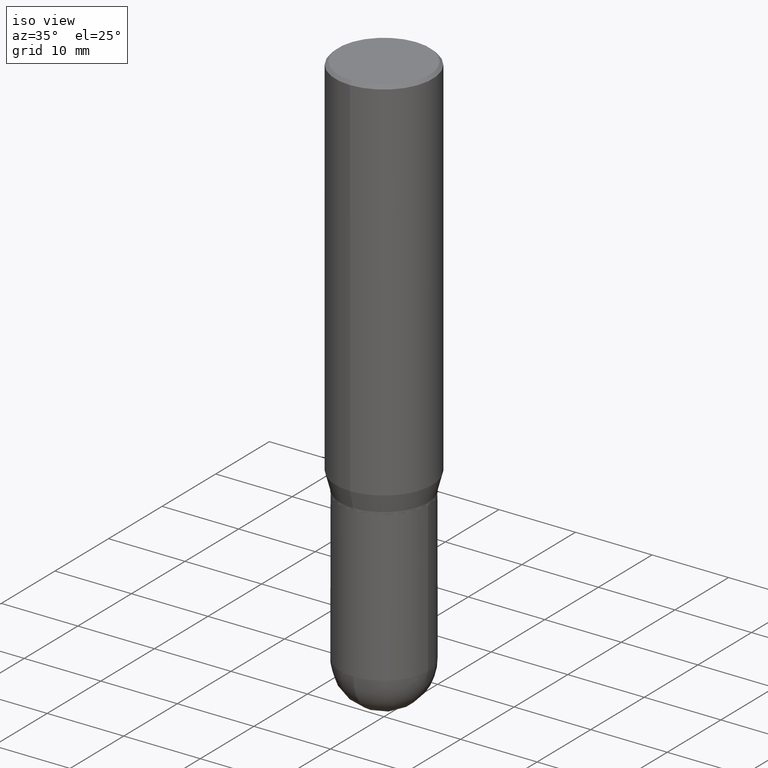
[diagram: clean part render]
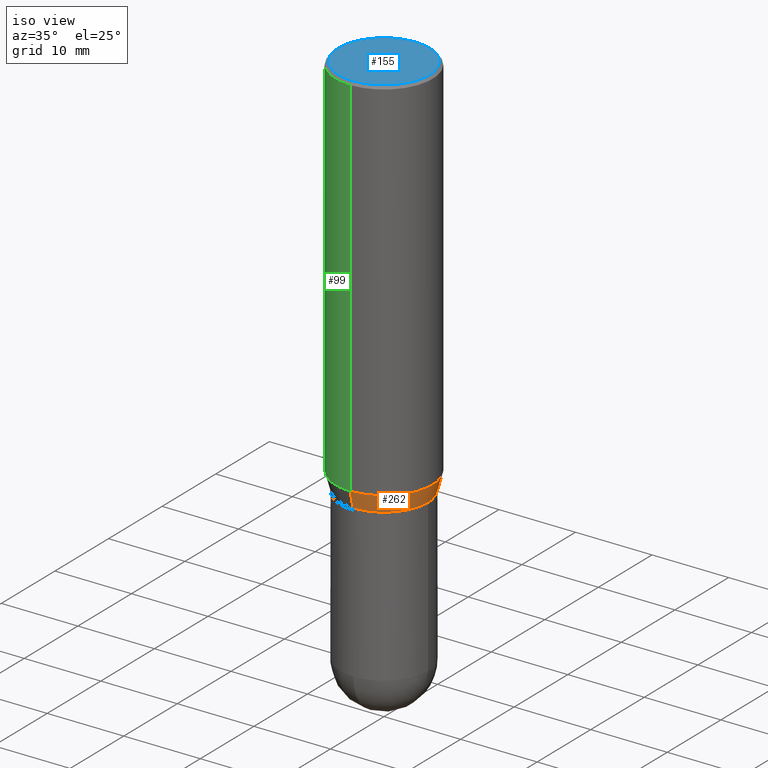
[diagram: same view with three faces highlighted in distinct colors, each labeled with its STEP entity id]
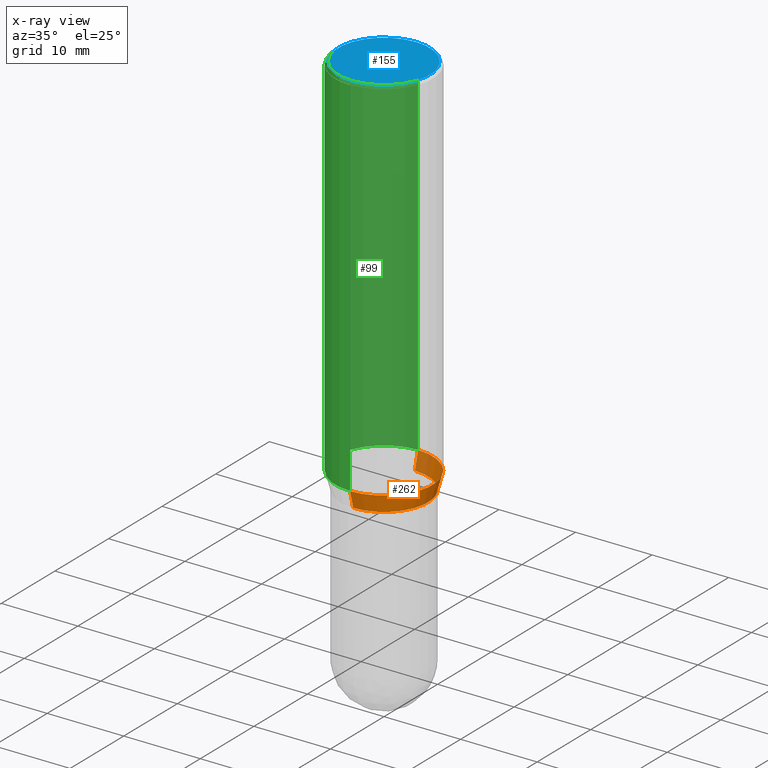
[diagram: x-ray of the same camera — body ghosted, the three highlighted faces saturated]
A machine part, iso view with three faces highlighted in distinct colors.
The next image is the same camera in x-ray (body ghosted, the three faces saturated) — at least one of them is partly hidden behind the body in this view.
Their STEP definitions:

[orange] entity #262 — the highlighted conical surface has half-angle 15 deg.
#11 = CARTESIAN_POINT ( 'NONE',  ( 1.776356839400296613E-15, 0.2499999999999933664, -1.902483408562511302 ) ) ;
#34 = VERTEX_POINT ( 'NONE', #431 ) ;
#37 = AXIS2_PLACEMENT_3D ( 'NONE', #113, #119, #432 ) ;
#86 = VECTOR ( 'NONE', #102, 39.37007874015748854 ) ;
#96 = AXIS2_PLACEMENT_3D ( 'NONE', #348, #193, #157 ) ;
#102 = DIRECTION ( 'NONE',  ( -1.807323732225331717E-15, -0.2588190451025184080, 0.9659258262890689783 ) ) ;
#113 = CARTESIAN_POINT ( 'NONE',  ( 4.867031423135188700E-29, -6.947262382759317484E-15, -1.990000000000000435 ) ) ;
#119 = DIRECTION ( 'NONE',  ( -2.445744433736275224E-29, 3.491086624502169122E-15, 1.000000000000000000 ) ) ;
#122 = DIRECTION ( 'NONE',  ( 1.839019923739601893E-15, 0.2588190451025252359, 0.9659258262890670910 ) ) ;
#127 = VERTEX_POINT ( 'NONE', #308 ) ;
#144 = CARTESIAN_POINT ( 'NONE',  ( 4.652988206767375455E-29, -6.641734380969875246E-15, -1.902483408562510414 ) ) ;
#145 = ORIENTED_EDGE ( 'NONE', *, *, #272, .T. ) ;
#150 = LINE ( 'NONE', #297, #86 ) ;
#157 = DIRECTION ( 'NONE',  ( -6.982962677686265922E-15, -1.000000000000000000, 3.617543138818270030E-15 ) ) ;
#169 = EDGE_CURVE ( 'NONE', #34, #426, #448, .T. ) ;
#185 = AXIS2_PLACEMENT_3D ( 'NONE', #144, #289, #412 ) ;
#192 = ORIENTED_EDGE ( 'NONE', *, *, #507, .F. ) ;
#193 = DIRECTION ( 'NONE',  ( -2.445744433736275224E-29, 3.491086624502169122E-15, 1.000000000000000000 ) ) ;
#232 = FACE_OUTER_BOUND ( 'NONE', #434, .T. ) ;
#241 = EDGE_CURVE ( 'NONE', #127, #426, #357, .T. ) ;
#249 = ORIENTED_EDGE ( 'NONE', *, *, #169, .F. ) ;
#262 = ADVANCED_FACE ( 'NONE', ( #232 ), #305, .T. ) ;
#267 = VECTOR ( 'NONE', #122, 39.37007874015748854 ) ;
#272 = EDGE_CURVE ( 'NONE', #503, #127, #331, .T. ) ;
#289 = DIRECTION ( 'NONE',  ( -2.445744433736275224E-29, 3.491086624502169122E-15, 1.000000000000000000 ) ) ;
#297 = CARTESIAN_POINT ( 'NONE',  ( -1.581990194629774423E-15, -0.2265500000000069125, -1.989999999999999547 ) ) ;
#305 = CONICAL_SURFACE ( 'NONE', #37, 0.2265499999999999736, 0.2617993877991505181 ) ;
#308 = CARTESIAN_POINT ( 'NONE',  ( 1.693045703632425956E-15, 0.2265499999999930347, -1.990000000000001101 ) ) ;
#329 = ORIENTED_EDGE ( 'NONE', *, *, #241, .T. ) ;
#331 = CIRCLE ( 'NONE', #96, 0.2265499999999999736 ) ;
#348 = CARTESIAN_POINT ( 'NONE',  ( 4.867031423135188700E-29, -6.947262382759317484E-15, -1.990000000000000435 ) ) ;
#357 = LINE ( 'NONE', #424, #267 ) ;
#412 = DIRECTION ( 'NONE',  ( -6.982962677686265922E-15, -1.000000000000000000, 3.278217592397115862E-15 ) ) ;
#424 = CARTESIAN_POINT ( 'NONE',  ( 1.609734567864555299E-15, 0.2265499999999930347, -1.990000000000001101 ) ) ;
#426 = VERTEX_POINT ( 'NONE', #11 ) ;
#431 = CARTESIAN_POINT ( 'NONE',  ( -1.745740669421519543E-15, -0.2500000000000066058, -1.902483408562509748 ) ) ;
#432 = DIRECTION ( 'NONE',  ( -6.982962677686265922E-15, -1.000000000000000000, 3.617543138818270030E-15 ) ) ;
#434 = EDGE_LOOP ( 'NONE', ( #145, #329, #249, #192 ) ) ;
#448 = CIRCLE ( 'NONE', #185, 0.2500000000000000000 ) ;
#500 = CARTESIAN_POINT ( 'NONE',  ( -1.581990194629774423E-15, -0.2265500000000069125, -1.989999999999999547 ) ) ;
#503 = VERTEX_POINT ( 'NONE', #500 ) ;
#507 = EDGE_CURVE ( 'NONE', #503, #34, #150, .T. ) ;

[blue] entity #155 — the highlighted planar face has unit normal (0, -0, -1).
#13 = PLANE ( 'NONE',  #462 ) ;
#54 = CIRCLE ( 'NONE', #200, 0.2349999999999999867 ) ;
#56 = EDGE_CURVE ( 'NONE', #299, #355, #219, .T. ) ;
#89 = CARTESIAN_POINT ( 'NONE',  ( 4.379907629666530887E-45, -6.251935701689351000E-31, -1.790828006904836215E-16 ) ) ;
#94 = ORIENTED_EDGE ( 'NONE', *, *, #56, .T. ) ;
#130 = EDGE_CURVE ( 'NONE', #355, #299, #54, .T. ) ;
#155 = ADVANCED_FACE ( 'NONE', ( #408 ), #13, .F. ) ;
#178 = CARTESIAN_POINT ( 'NONE',  ( 1.640996229256272519E-15, 0.2349999999999999867, -9.099467571032515949E-16 ) ) ;
#200 = AXIS2_PLACEMENT_3D ( 'NONE', #478, #395, #326 ) ;
#219 = CIRCLE ( 'NONE', #290, 0.2349999999999999867 ) ;
#244 = DIRECTION ( 'NONE',  ( -2.445744433736275224E-29, 3.491086624502169122E-15, 1.000000000000000000 ) ) ;
#290 = AXIS2_PLACEMENT_3D ( 'NONE', #89, #244, #435 ) ;
#299 = VERTEX_POINT ( 'NONE', #341 ) ;
#326 = DIRECTION ( 'NONE',  ( -6.982962677686266711E-15, -1.000000000000000000, 3.491086624502169122E-15 ) ) ;
#341 = CARTESIAN_POINT ( 'NONE',  ( 1.693368449338919598E-15, 0.2349999999999999867, -9.994881574484934303E-16 ) ) ;
#355 = VERTEX_POINT ( 'NONE', #386 ) ;
#372 = DIRECTION ( 'NONE',  ( 6.982962677686265922E-15, 1.000000000000000000, -3.491086624502168728E-15 ) ) ;
#386 = CARTESIAN_POINT ( 'NONE',  ( -1.663670764459595899E-15, -0.2349999999999999867, 6.413225560675259901E-16 ) ) ;
#395 = DIRECTION ( 'NONE',  ( -2.445744433736275224E-29, 3.491086624502169122E-15, 1.000000000000000000 ) ) ;
#408 = FACE_OUTER_BOUND ( 'NONE', #420, .T. ) ;
#414 = ORIENTED_EDGE ( 'NONE', *, *, #130, .T. ) ;
#420 = EDGE_LOOP ( 'NONE', ( #94, #414 ) ) ;
#435 = DIRECTION ( 'NONE',  ( -6.982962677686266711E-15, -1.000000000000000000, 3.491086624502169122E-15 ) ) ;
#462 = AXIS2_PLACEMENT_3D ( 'NONE', #178, #491, #372 ) ;
#478 = CARTESIAN_POINT ( 'NONE',  ( 4.379907629666530887E-45, -6.251935701689351000E-31, -1.790828006904836215E-16 ) ) ;
#491 = DIRECTION ( 'NONE',  ( 2.445744433736275224E-29, -3.491086624502168728E-15, -1.000000000000000000 ) ) ;

[green] entity #99 — the highlighted cylindrical surface (partial cylindrical patch) has radius 6.35 mm, axis along (-0, 0, 1).
#3 = DIRECTION ( 'NONE',  ( -6.982962677686265922E-15, -1.000000000000000000, 3.278217592397115862E-15 ) ) ;
#11 = CARTESIAN_POINT ( 'NONE',  ( 1.776356839400296613E-15, 0.2499999999999933664, -1.902483408562511302 ) ) ;
#19 = AXIS2_PLACEMENT_3D ( 'NONE', #68, #237, #3 ) ;
#31 = VERTEX_POINT ( 'NONE', #278 ) ;
#34 = VERTEX_POINT ( 'NONE', #431 ) ;
#68 = CARTESIAN_POINT ( 'NONE',  ( 4.652988206767375455E-29, -6.641734380969875246E-15, -1.902483408562510414 ) ) ;
#81 = DIRECTION ( 'NONE',  ( -2.445744433736275224E-29, 3.491086624502168728E-15, 1.000000000000000000 ) ) ;
#85 = DIRECTION ( 'NONE',  ( -2.445744433736275224E-29, 3.491086624502169122E-15, 1.000000000000000000 ) ) ;
#99 = ADVANCED_FACE ( 'NONE', ( #235 ), #134, .T. ) ;
#116 = EDGE_CURVE ( 'NONE', #426, #240, #128, .T. ) ;
#128 = LINE ( 'NONE', #350, #151 ) ;
#132 = AXIS2_PLACEMENT_3D ( 'NONE', #216, #415, #499 ) ;
#134 = CYLINDRICAL_SURFACE ( 'NONE', #238, 0.2500000000000000000 ) ;
#151 = VECTOR ( 'NONE', #81, 39.37007874015748143 ) ;
#186 = EDGE_CURVE ( 'NONE', #426, #34, #475, .T. ) ;
#203 = DIRECTION ( 'NONE',  ( -6.982962677686265922E-15, -1.000000000000000000, 3.491086624502169122E-15 ) ) ;
#212 = EDGE_CURVE ( 'NONE', #240, #31, #377, .T. ) ;
#216 = CARTESIAN_POINT ( 'NONE',  ( 3.668616650604456329E-31, -5.236629936753315584E-17, -0.01500000000000017986 ) ) ;
#235 = FACE_OUTER_BOUND ( 'NONE', #335, .T. ) ;
#237 = DIRECTION ( 'NONE',  ( -2.445744433736275224E-29, 3.491086624502169122E-15, 1.000000000000000000 ) ) ;
#238 = AXIS2_PLACEMENT_3D ( 'NONE', #363, #85, #203 ) ;
#240 = VERTEX_POINT ( 'NONE', #510 ) ;
#278 = CARTESIAN_POINT ( 'NONE',  ( -1.745740669421565889E-15, -0.2500000000000000555, -0.01499999999999930729 ) ) ;
#313 = DIRECTION ( 'NONE',  ( -2.445744433736275224E-29, 3.491086624502168728E-15, 1.000000000000000000 ) ) ;
#318 = CARTESIAN_POINT ( 'NONE',  ( -1.745740669421566480E-15, -0.2500000000000000000, 8.727716561255422806E-16 ) ) ;
#335 = EDGE_LOOP ( 'NONE', ( #340, #409, #477, #439 ) ) ;
#340 = ORIENTED_EDGE ( 'NONE', *, *, #116, .F. ) ;
#350 = CARTESIAN_POINT ( 'NONE',  ( 1.776356839400250267E-15, 0.2500000000000000000, -8.727716561255422806E-16 ) ) ;
#363 = CARTESIAN_POINT ( 'NONE',  ( 0.000000000000000000, 0.000000000000000000, 0.000000000000000000 ) ) ;
#364 = LINE ( 'NONE', #318, #368 ) ;
#368 = VECTOR ( 'NONE', #313, 39.37007874015748143 ) ;
#377 = CIRCLE ( 'NONE', #132, 0.2500000000000000000 ) ;
#409 = ORIENTED_EDGE ( 'NONE', *, *, #186, .T. ) ;
#415 = DIRECTION ( 'NONE',  ( -2.445744433736275224E-29, 3.491086624502169122E-15, 1.000000000000000000 ) ) ;
#426 = VERTEX_POINT ( 'NONE', #11 ) ;
#431 = CARTESIAN_POINT ( 'NONE',  ( -1.745740669421519543E-15, -0.2500000000000066058, -1.902483408562509748 ) ) ;
#438 = EDGE_CURVE ( 'NONE', #34, #31, #364, .T. ) ;
#439 = ORIENTED_EDGE ( 'NONE', *, *, #212, .F. ) ;
#475 = CIRCLE ( 'NONE', #19, 0.2500000000000000000 ) ;
#477 = ORIENTED_EDGE ( 'NONE', *, *, #438, .T. ) ;
#499 = DIRECTION ( 'NONE',  ( -6.982962677686265922E-15, -1.000000000000000000, 3.491643216902136408E-15 ) ) ;
#510 = CARTESIAN_POINT ( 'NONE',  ( 1.776356839400297007E-15, 0.2499999999999999167, -0.01500000000000105242 ) ) ;